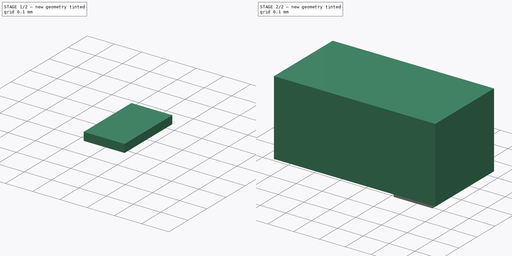
[diagram: build sequence overview — one tinted view per stage of 2, left to right]
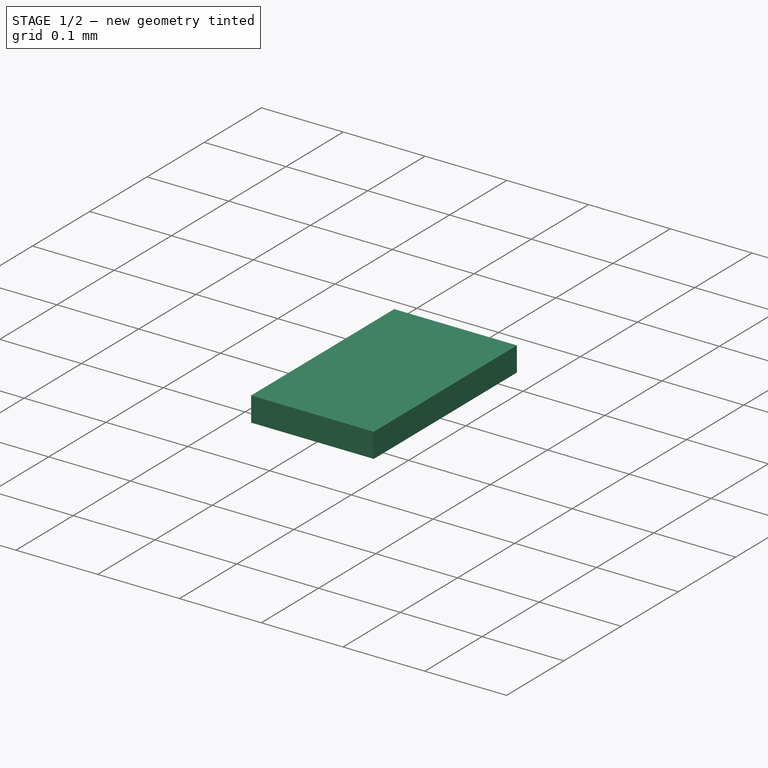
[diagram: stage 1 of 2 — iso view after this stage's code; geometry added in this stage tinted green]
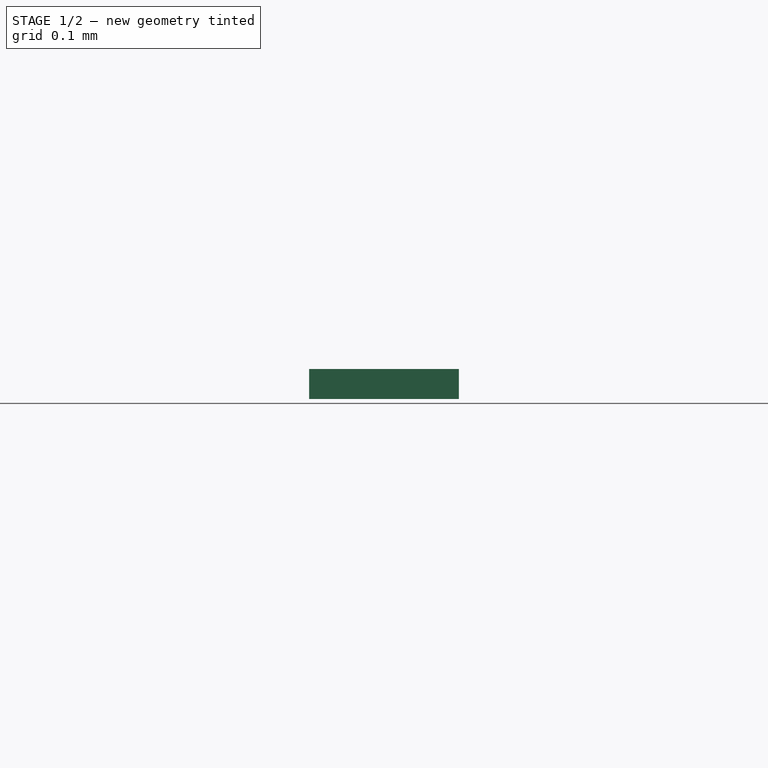
[diagram: stage 1 of 2 — front view after this stage's code; geometry added in this stage tinted green]
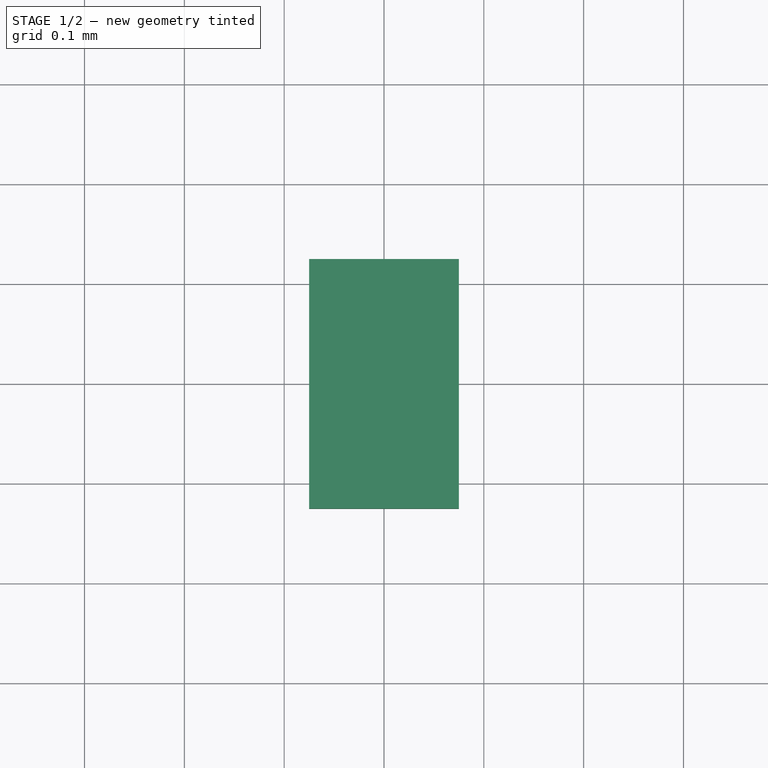
[diagram: stage 1 of 2 — top view after this stage's code; geometry added in this stage tinted green]
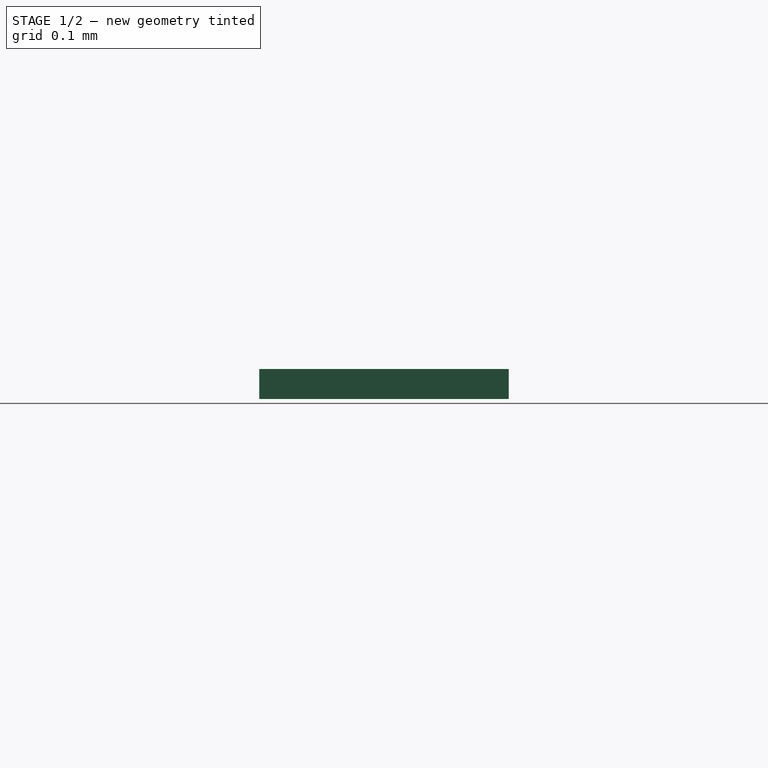
[diagram: stage 1 of 2 — right view after this stage's code; geometry added in this stage tinted green]
FCSTD DOCUMENT  (FreeCAD 0.19R22039 (Git))
Label: TVS _PESD4V0Y1BSFYL
License: All rights reserved
LicenseURL: http://en.wikipedia.org/wiki/All_rights_reserved
objects: Part::Feature×4, PartDesign::Body×3, Sketcher::SketchObject×2, PartDesign::Pad×2, PartDesign::FeatureBase×1, App::Part×1
note: 14 computed .brp shape members not serialized (recipe doc carries the construction recipe); baked Part::Feature solids carry a one-line shape summary decoded from their .brp

FEATURE [PartDesign::Body] Body
  Group = -> [Sketch001,Pad]
  Origin = -> Origin001
  Tip = -> Pad
FEATURE [Sketcher::SketchObject] Sketch
  MapMode = 5
  Placement = pos=(0,0,0) rot=(1,0,0;1.5708rad)
  Support = -> [XZ_Plane002]
  sketch-geometry (5):
    g0: LineSegment StartX=0.125 StartY=0.03 StartZ=0 EndX=0.275 EndY=0.03 EndZ=0
    g1: LineSegment StartX=0.275 StartY=0.03 StartZ=0 EndX=0.275 EndY=0 EndZ=0
    g2: LineSegment StartX=0.275 StartY=0 StartZ=0 EndX=0.125 EndY=0 EndZ=0
    g3: LineSegment StartX=0.125 StartY=0 StartZ=0 EndX=0.125 EndY=0.03 EndZ=0
    g4: GeomPoint X=0.2 Y=0 Z=0
  constraints (13):
    c: Coincident(g0,g1)
    c: Coincident(g1,g2)
    c: Coincident(g2,g3)
    c: Coincident(g3,g0)
    c: Horizontal(g0)
    c: Horizontal(g2)
    c: Vertical(g1)
    c: Vertical(g3)
    c: PointOnObject(g1,g-1)
    c: DistanceY(g1,g0) = 0.03
    c: Symmetric(g2,g1,g4)
    c: DistanceX(g-1,g4) = 0.2
    c: DistanceX(g2,g2) = 0.15
FEATURE [PartDesign::Pad] Pad001
  Length = 0.25
  Length2 = 100
  Midplane = true
  Placement = pos=(0,0,0) rot=(1,0,0;1.5708rad)
  Profile = -> Sketch
  Type = 0
FEATURE [PartDesign::Body] Body001  label="Terminal2"
  Group = -> [Sketch,Pad001]
  Origin = -> Origin002
  Tip = -> Pad001
FEATURE [PartDesign::FeatureBase] Clone
  BaseFeature = -> Body001
FEATURE [PartDesign::Body] Body002  label="Terminal1"
  Group = -> [Clone]
  Origin = -> Origin003
  Placement = pos=(-0.4,0,0) rot=(0,0,1;0rad)
  Tip = -> Clone
FEATURE [App::Part] Part  label="TVS - PESD4V0Y1BSFYL"
  Group = -> [Body,Body001,Body002]
  Origin = -> Origin
FEATURE [Part::Feature] Pad_cp
  Placement = pos=(0,0,0) rot=(1,0,0;1.5708rad)
  shape: bbox 0.625 x 0.325 x 0.29 mm, 6 faces (baked)
FEATURE [Part::Feature] Pad001_cp
  Placement = pos=(0,0,0) rot=(1,0,0;1.5708rad)
  shape: bbox 0.15 x 0.25 x 0.03 mm, 6 faces (baked)
FEATURE [Part::Feature] Clone_cp
  Placement = pos=(-0.4,0,0) rot=(0,0,1;0rad)
  shape: bbox 0.15 x 0.25 x 0.03 mm, 6 faces (baked)
FEATURE [Part::Feature] Shape  label="TVS___PESD4V0Y1BSFYL_cp"
  shape: bbox 0.625 x 0.325 x 0.32 mm, 18 faces, 3 solids (baked)
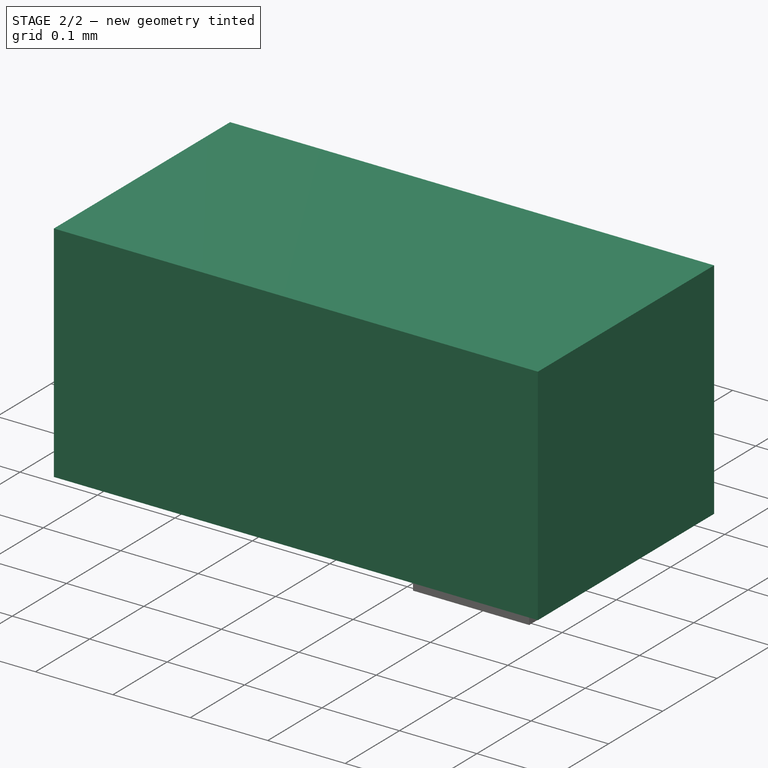
[diagram: stage 2 of 2 — iso view after this stage's code; geometry added in this stage tinted green]
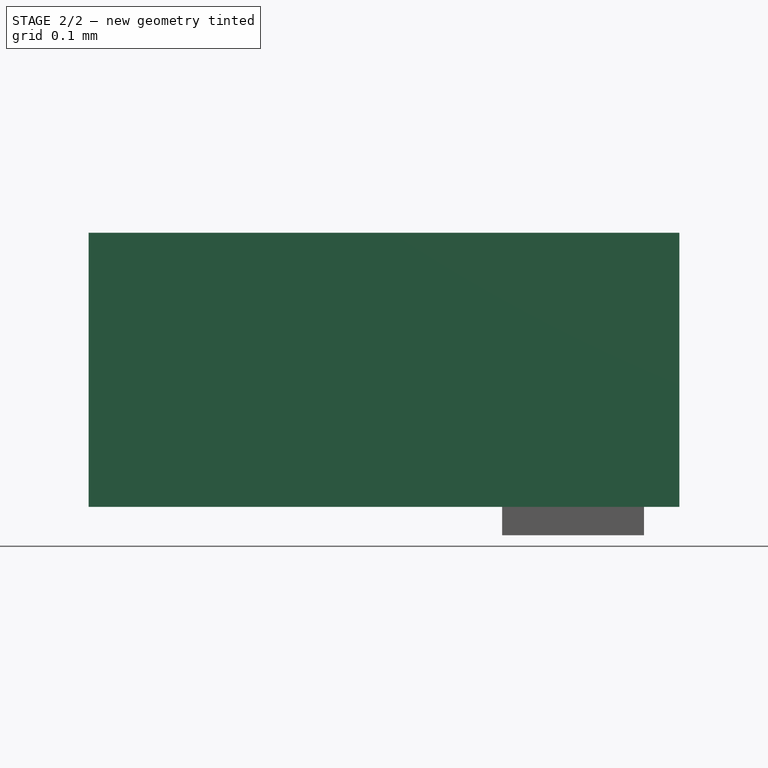
[diagram: stage 2 of 2 — front view after this stage's code; geometry added in this stage tinted green]
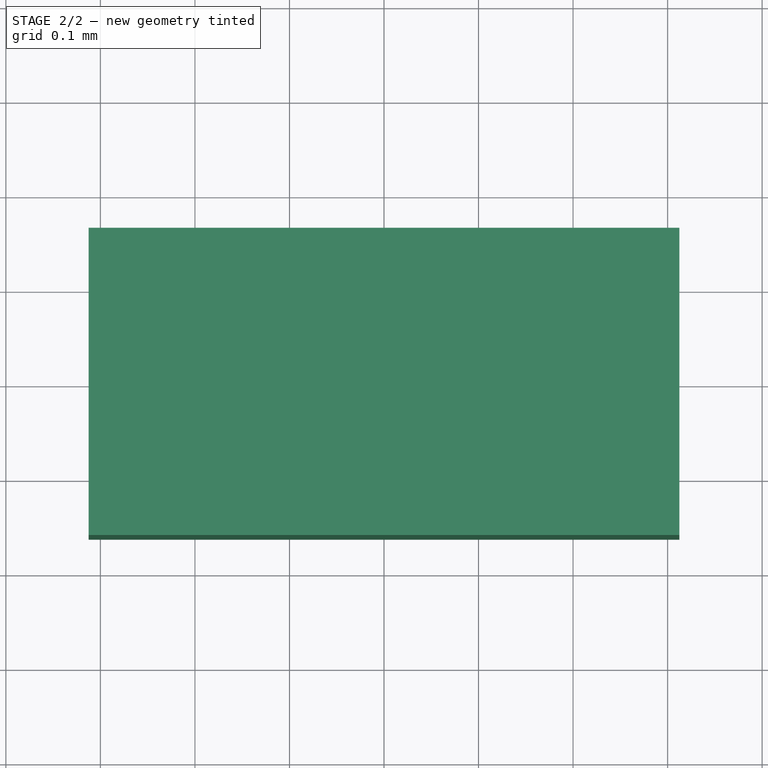
[diagram: stage 2 of 2 — top view after this stage's code; geometry added in this stage tinted green]
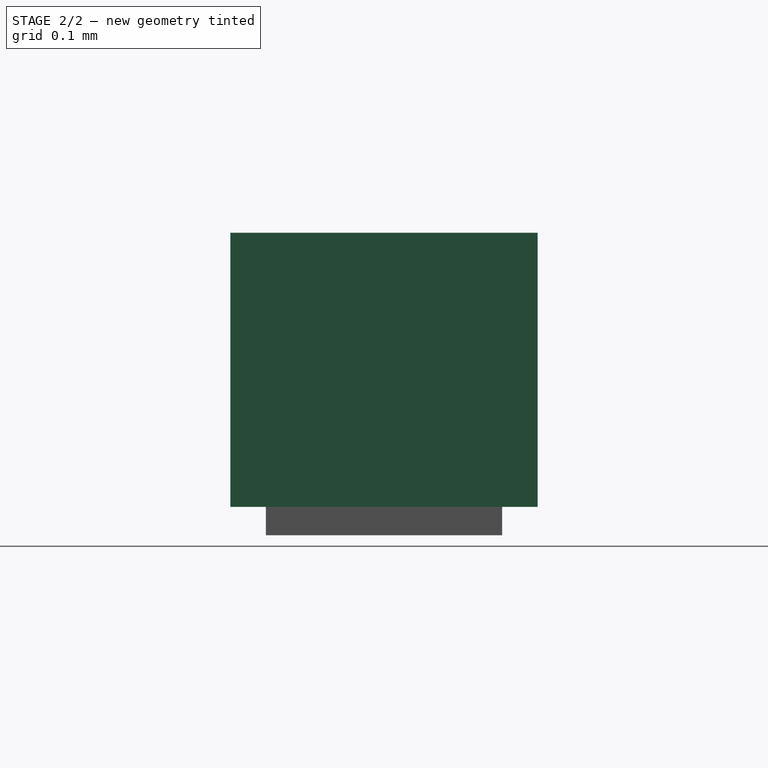
[diagram: stage 2 of 2 — right view after this stage's code; geometry added in this stage tinted green]
FEATURE [Sketcher::SketchObject] Sketch001
  MapMode = 5
  Placement = pos=(0,0,0) rot=(1,0,0;1.5708rad)
  Support = -> [XZ_Plane001]
  sketch-geometry (4):
    g0: LineSegment StartX=-0.3125 StartY=0.32 StartZ=0 EndX=0.3125 EndY=0.32 EndZ=0
    g1: LineSegment StartX=0.3125 StartY=0.32 StartZ=0 EndX=0.3125 EndY=0.03 EndZ=0
    g2: LineSegment StartX=0.3125 StartY=0.03 StartZ=0 EndX=-0.3125 EndY=0.03 EndZ=0
    g3: LineSegment StartX=-0.3125 StartY=0.03 StartZ=0 EndX=-0.3125 EndY=0.32 EndZ=0
  constraints (11):
    c: Coincident(g0,g1)
    c: Coincident(g1,g2)
    c: Coincident(g2,g3)
    c: Coincident(g3,g0)
    c: Horizontal(g0)
    c: Vertical(g1)
    c: Vertical(g3)
    c: DistanceY(g-1,g1) = 0.03
    c: DistanceY(g-1,g0) = 0.32
    c: DistanceX(g0,g0) = 0.625
    c: Symmetric(g1,g2,g-2)
FEATURE [PartDesign::Pad] Pad
  Length = 0.325
  Length2 = 100
  Midplane = true
  Placement = pos=(0,0,0) rot=(1,0,0;1.5708rad)
  Profile = -> Sketch001
  Type = 0
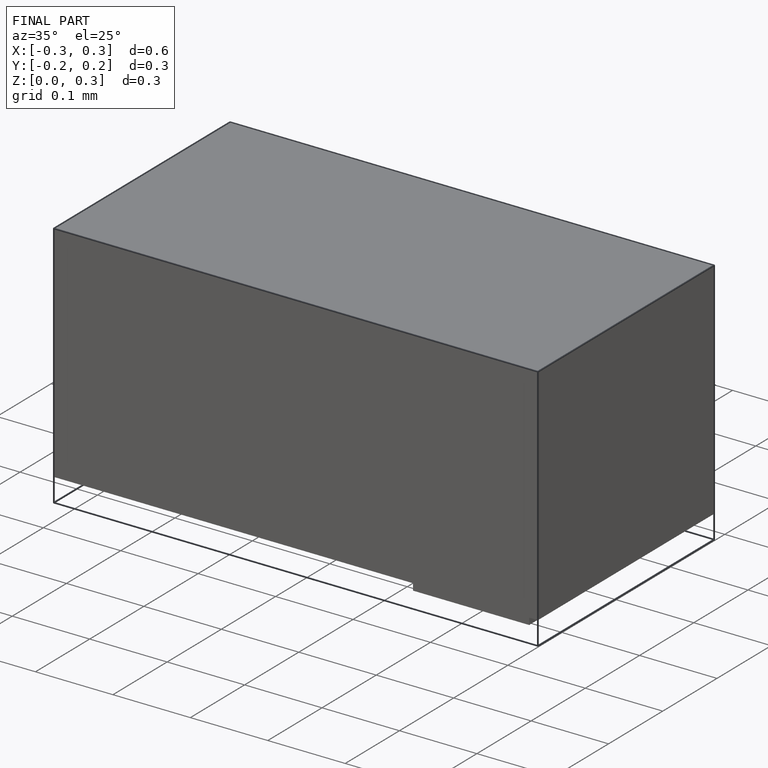
[diagram: finished part — iso view with bounding-box wireframe]
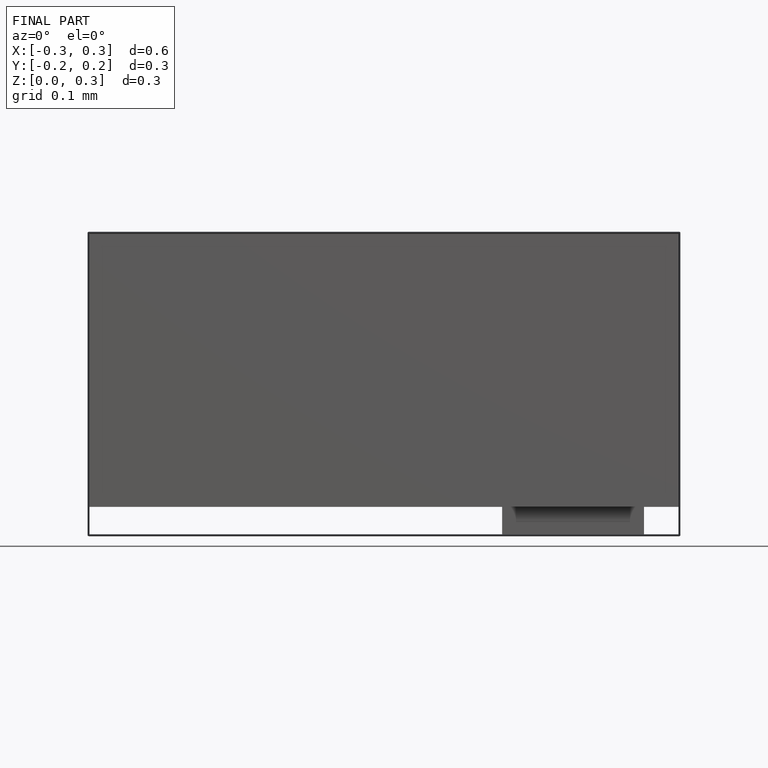
[diagram: finished part — front view with bounding-box wireframe]
